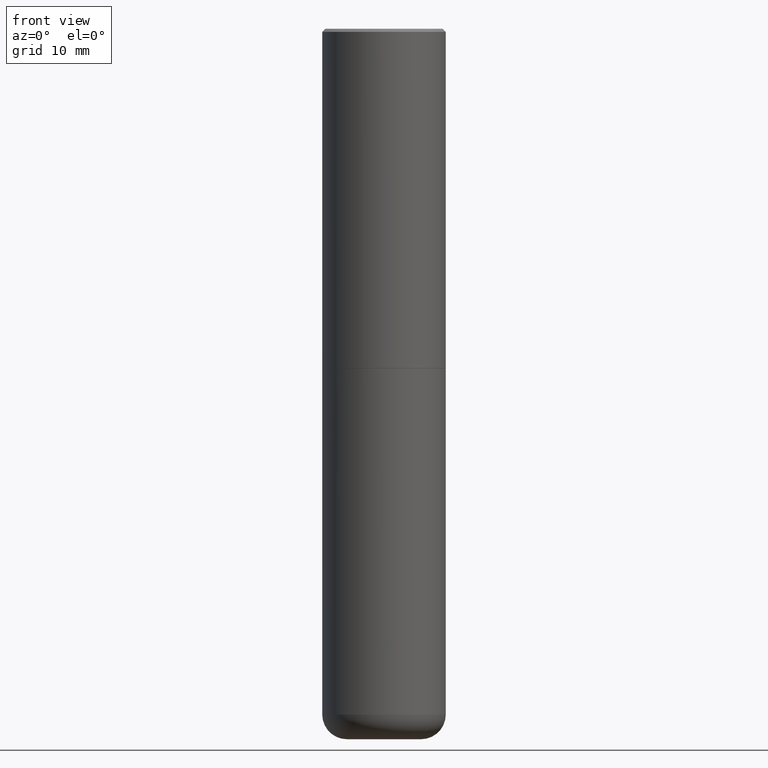
[diagram: clean part render]
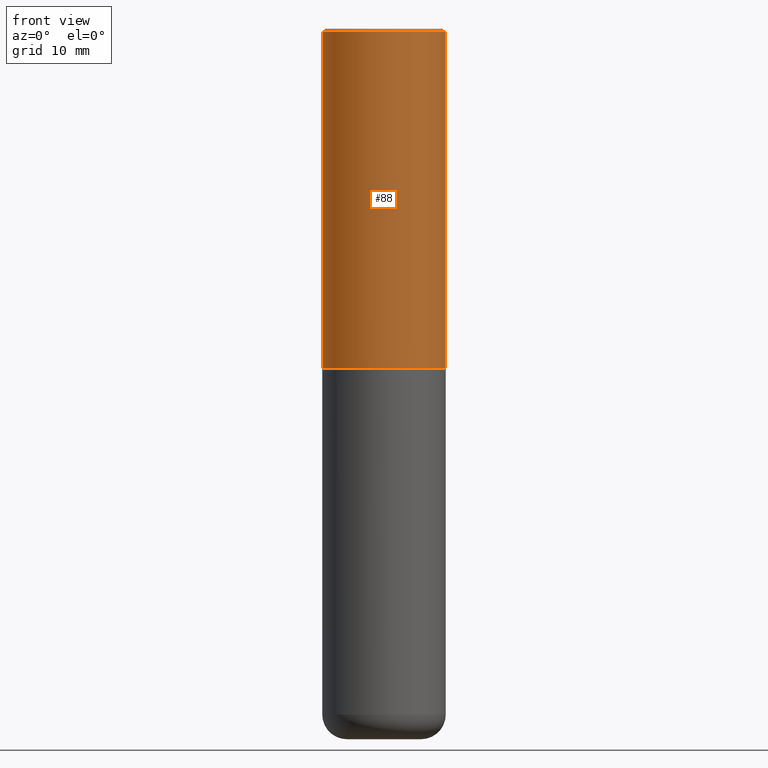
[diagram: same view with one face highlighted and labeled with its STEP entity id]
A machine part, front view. The second image highlights one B-rep face of the part: STEP entity #88.
In plain terms, the highlighted cylindrical surface (partial cylindrical patch) has radius 10 mm, axis along (-0, 0, 1).
Its self-contained STEP definition (entity closure, byte-faithful):
#24 = DIRECTION ( 'NONE',  ( -2.445468806185136597E-29, 3.491481338843145583E-15, 1.000000000000000000 ) ) ;
#28 = LINE ( 'NONE', #413, #381 ) ;
#35 = DIRECTION ( 'NONE',  ( 1.000000000000000000, -6.982962677686265922E-15, 0.000000000000000000 ) ) ;
#44 = ORIENTED_EDGE ( 'NONE', *, *, #360, .F. ) ;
#48 = ORIENTED_EDGE ( 'NONE', *, *, #373, .F. ) ;
#61 = EDGE_CURVE ( 'NONE', #139, #336, #28, .T. ) ;
#69 = EDGE_LOOP ( 'NONE', ( #44, #116, #221, #48 ) ) ;
#77 = AXIS2_PLACEMENT_3D ( 'NONE', #240, #24, #204 ) ;
#87 = AXIS2_PLACEMENT_3D ( 'NONE', #246, #213, #35 ) ;
#88 = ADVANCED_FACE ( 'NONE', ( #243 ), #149, .T. ) ;
#102 = VECTOR ( 'NONE', #222, 39.37007874015748143 ) ;
#104 = AXIS2_PLACEMENT_3D ( 'NONE', #306, #408, #117 ) ;
#116 = ORIENTED_EDGE ( 'NONE', *, *, #216, .T. ) ;
#117 = DIRECTION ( 'NONE',  ( 1.000000000000000000, -6.982962677686269077E-15, 0.000000000000000000 ) ) ;
#139 = VERTEX_POINT ( 'NONE', #151 ) ;
#149 = CYLINDRICAL_SURFACE ( 'NONE', #77, 0.3937000000000001609 ) ;
#151 = CARTESIAN_POINT ( 'NONE',  ( 0.3937000000000002720, -1.030615461599718763E-14, -2.164399999999999658 ) ) ;
#152 = LINE ( 'NONE', #188, #102 ) ;
#188 = CARTESIAN_POINT ( 'NONE',  ( -0.3937000000000001609, 2.797406750687515575E-15, -1.936584745033357296E-29 ) ) ;
#193 = VERTEX_POINT ( 'NONE', #203 ) ;
#203 = CARTESIAN_POINT ( 'NONE',  ( -0.3937000000000003830, -1.015989167596963746E-15, -2.164399999999999658 ) ) ;
#204 = DIRECTION ( 'NONE',  ( 1.000000000000000000, -6.982962677686266711E-15, 4.876176775795935793E-29 ) ) ;
#213 = DIRECTION ( 'NONE',  ( -2.445468806185136597E-29, 3.491481338843145583E-15, 1.000000000000000000 ) ) ;
#216 = EDGE_CURVE ( 'NONE', #193, #139, #281, .T. ) ;
#221 = ORIENTED_EDGE ( 'NONE', *, *, #61, .T. ) ;
#222 = DIRECTION ( 'NONE',  ( -2.445468806185136877E-29, 3.491481338843145188E-15, 1.000000000000000000 ) ) ;
#240 = CARTESIAN_POINT ( 'NONE',  ( 0.000000000000000000, 0.000000000000000000, 0.000000000000000000 ) ) ;
#243 = FACE_OUTER_BOUND ( 'NONE', #69, .T. ) ;
#246 = CARTESIAN_POINT ( 'NONE',  ( 4.890937612370294178E-31, -6.982962677686321191E-17, -0.02000000000000008715 ) ) ;
#248 = CARTESIAN_POINT ( 'NONE',  ( 0.3937000000000000499, -2.770807688499515734E-15, -0.02000000000000008715 ) ) ;
#260 = CARTESIAN_POINT ( 'NONE',  ( -0.3937000000000000499, 2.679362779428219918E-15, -0.02000000000000008715 ) ) ;
#281 = CIRCLE ( 'NONE', #104, 0.3937000000000002720 ) ;
#302 = DIRECTION ( 'NONE',  ( -2.445468806185136877E-29, 3.491481338843145188E-15, 1.000000000000000000 ) ) ;
#306 = CARTESIAN_POINT ( 'NONE',  ( 5.292972684107107621E-29, -7.556962209792102838E-15, -2.164399999999999658 ) ) ;
#336 = VERTEX_POINT ( 'NONE', #248 ) ;
#344 = CIRCLE ( 'NONE', #87, 0.3937000000000000499 ) ;
#360 = EDGE_CURVE ( 'NONE', #193, #405, #152, .T. ) ;
#373 = EDGE_CURVE ( 'NONE', #405, #336, #344, .T. ) ;
#381 = VECTOR ( 'NONE', #302, 39.37007874015748143 ) ;
#405 = VERTEX_POINT ( 'NONE', #260 ) ;
#408 = DIRECTION ( 'NONE',  ( -2.445468806185136597E-29, 3.491481338843145583E-15, 1.000000000000000000 ) ) ;
#413 = CARTESIAN_POINT ( 'NONE',  ( 0.3937000000000001609, -2.749192406205084400E-15, 1.919750796630860732E-29 ) ) ;